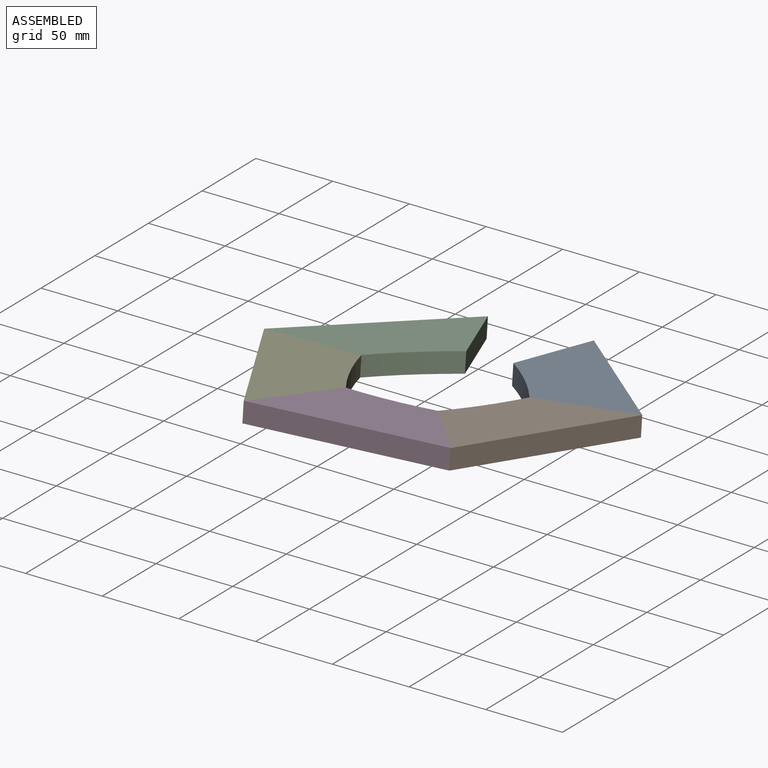
[diagram: assembled view]
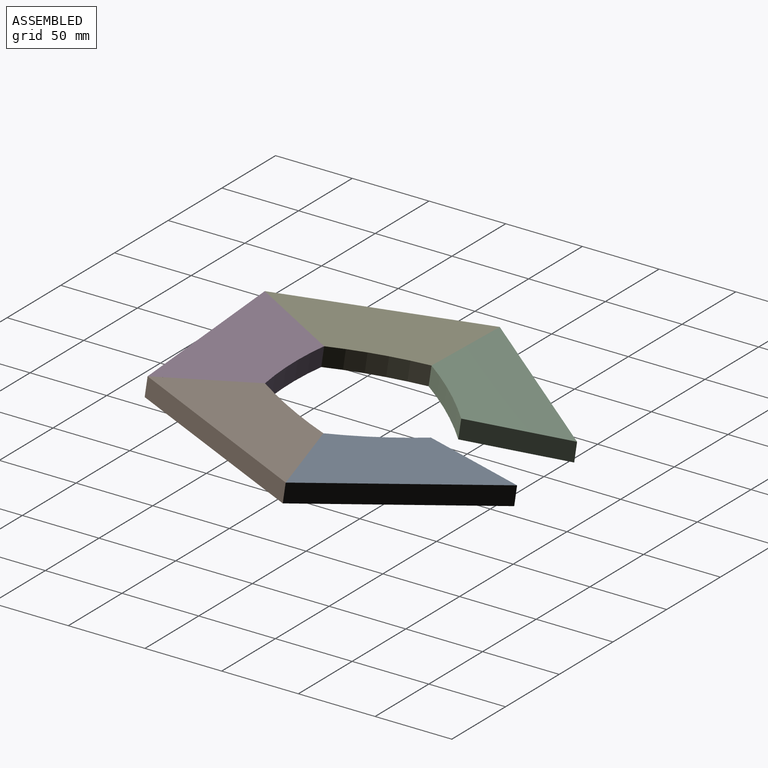
[diagram: assembled view, second angle]
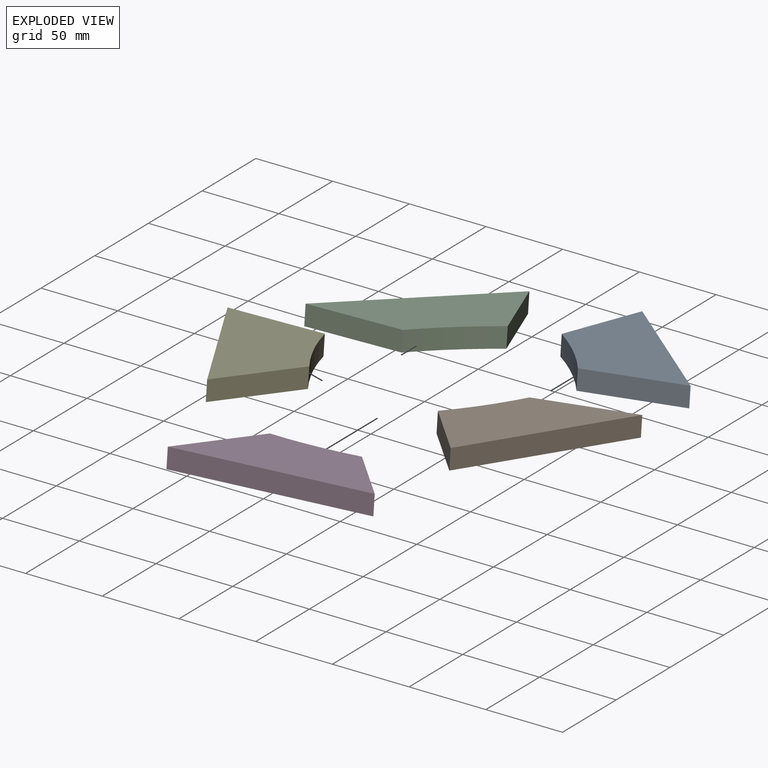
[diagram: exploded view]
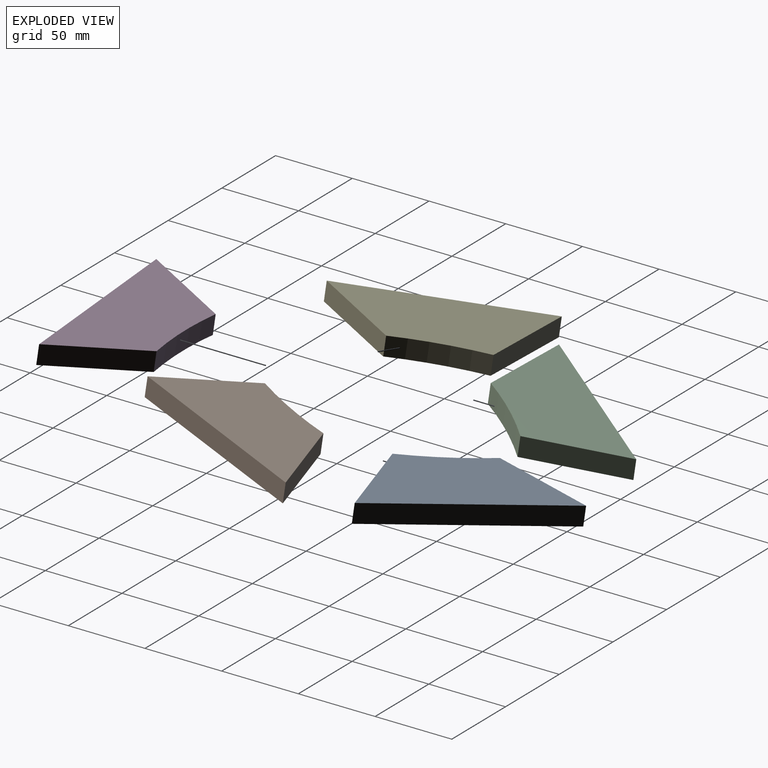
[diagram: exploded view, second angle]
ASSEMBLY  parts=5 mates=4
PART A: 6 faces, bbox 55x127x12.7 mm
  f0: cylinder r=233.13mm len=58.32mm, axis (0,0,-1), area 743.8mm2, adj f1,f3,f4,f5
  f1: plane 54.98x31.78mm, normal (0.5,0.87,0), area 806.5mm2, adj f0,f2,f4,f5
  f2: plane 127x12.7mm, normal (-1,0,0), area 1612.9mm2, adj f1,f3,f4,f5
  f3: plane 51.67x36.91mm, normal (0.58,-0.81,0), area 806.4mm2, adj f0,f2,f4,f5
  f4: plane 127x54.98mm, normal (0,0,1), area 4865.2mm2, adj f0,f1,f2,f3
  f5: plane 127x54.98mm, normal (0,0,-1), area 4865.2mm2, adj f0,f1,f2,f3
PART B: same geometry as A
PART C: same geometry as A
PART D: same geometry as A
PART E: same geometry as A
PLACE A rot(axis=(-0.02,-0.07,-1),133.5deg) t=(260.98,-28.6,84.79)mm
PLACE B rot(axis=(-0.02,0.06,1),161deg) t=(230.08,-103.12,94)mm
PLACE C rot(axis=(-0.19,-0.1,-0.98),36.5deg) t=(163.89,28.3,74.92)mm
PLACE D rot(axis=(-0.07,0.06,1),95.7deg) t=(148.95,-106.27,92.52)mm
PLACE E rot(axis=(-0.25,0.02,0.97),30.8deg) t=(112.73,-34.35,82.08)mm
MATE fastened A.f1 <-> B.f3  axis (0.28,-0.95,0.13) through (270.57,-22.55,90.61)mm
MATE fastened D.f1 <-> E.f3  axis (-0.91,0.41,-0.08) through (146.33,-116.12,100.18)mm
MATE fastened B.f1 <-> D.f3  axis (-0.76,-0.65,0.07) through (238.71,-108.91,101.38)mm
MATE fastened E.f1 <-> C.f3  axis (0,0.99,-0.13) through (101.75,-35.73,88.41)mm
